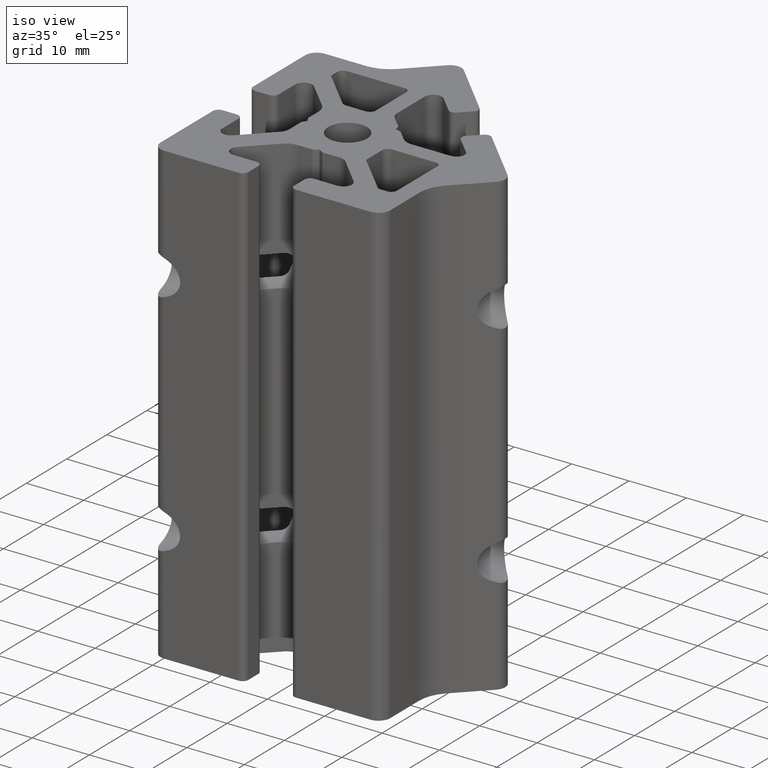
[diagram: clean part render]
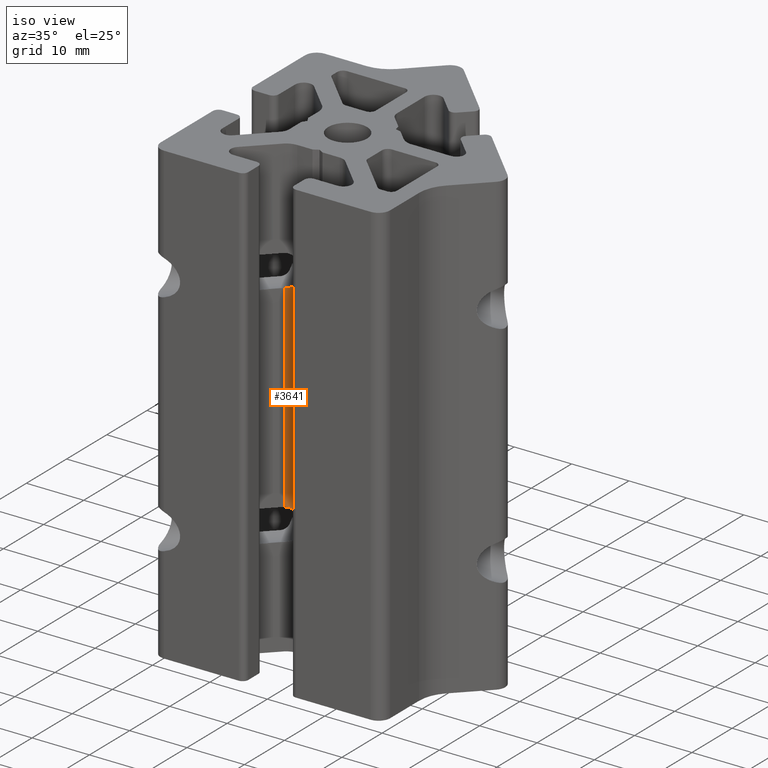
[diagram: same view with one face highlighted and labeled with its STEP entity id]
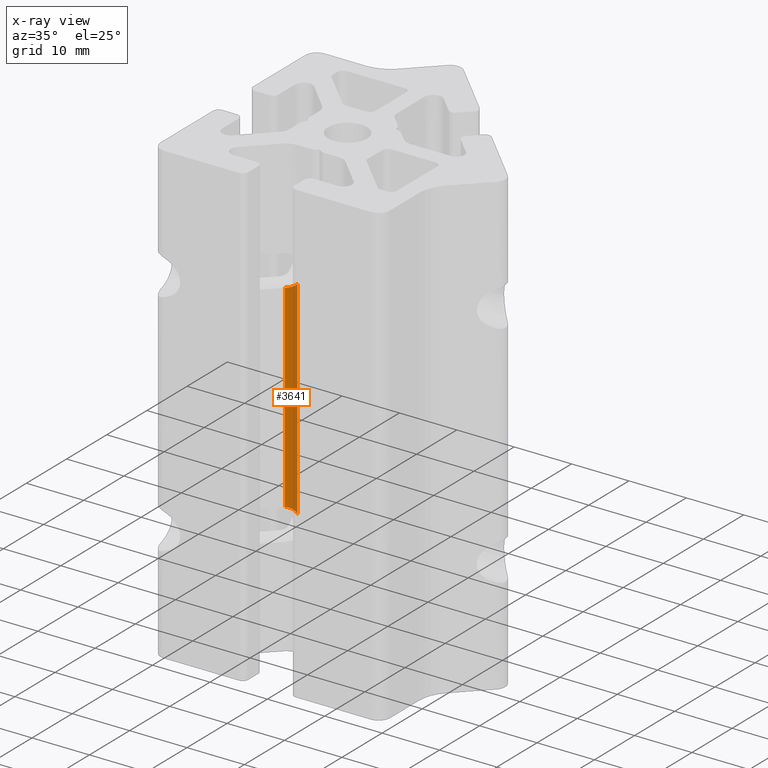
[diagram: x-ray of the same camera — body ghosted, the highlighted face saturated]
A machine part, iso view. The second image highlights one B-rep face of the part: STEP entity #3641.
The next image is the same camera in x-ray: the body ghosted, the highlighted face saturated — about 37% of this face is hidden behind the body in this view.
In plain terms, the highlighted cylindrical surface (edge-blend (fillet) strip) has radius 2.9284 mm, axis along (0, 0, -1).
Its self-contained STEP definition (entity closure, byte-faithful):
#3511=CARTESIAN_POINT('',(-5.257334492823247,-8.085783114958758,22.749415990107096));
#3512=VERTEX_POINT('',#3511);
#3519=CARTESIAN_POINT('',(-5.257334492823247,-8.085783114958758,57.250299231264805));
#3520=VERTEX_POINT('',#3519);
#3521=CARTESIAN_POINT('',(-5.257334492823247,-8.085783114958758,57.250299231264769));
#3522=DIRECTION('',(0.0,0.0,-1.0));
#3523=VECTOR('',#3522,34.500883241157638);
#3524=LINE('',#3521,#3523);
#3525=EDGE_CURVE('',#3520,#3512,#3524,.T.);
#3603=CARTESIAN_POINT('',(-3.500151814412675,-10.428407275395784,79.999715220555601));
#3604=DIRECTION('',(0.0,0.0,-1.0));
#3605=DIRECTION('',(-0.600046890361850,0.799964830081345,0.0));
#3606=AXIS2_PLACEMENT_3D('',#3603,#3604,#3605);
#3607=CYLINDRICAL_SURFACE('',#3606,2.928408940426380);
#3608=ORIENTED_EDGE('',*,*,#3525,.T.);
#3609=CARTESIAN_POINT('',(-3.500151814412675,-7.499998334969405,21.886856979532695));
#3610=VERTEX_POINT('',#3609);
#3611=CARTESIAN_POINT('',(-3.500151814412675,-7.499998334969405,21.886856979532652));
#3612=CARTESIAN_POINT('',(-3.611799862691441,-7.499998334969405,22.005186007849950));
#3613=CARTESIAN_POINT('',(-3.897640081839199,-7.514823193317625,22.254539934891596));
#3614=CARTESIAN_POINT('',(-4.395449667999401,-7.620433387307912,22.529594191349986));
#3615=CARTESIAN_POINT('',(-4.877192527758780,-7.828527037652748,22.685598723494131));
#3616=CARTESIAN_POINT('',(-5.151332268964325,-8.006271738450323,22.735790605817186));
#3617=CARTESIAN_POINT('',(-5.257334492823247,-8.085783114958758,22.749415990107053));
#3618=B_SPLINE_CURVE_WITH_KNOTS('',3,(#3611,#3612,#3613,#3614,#3615,#3616,#3617),.UNSPECIFIED.,.F.,.U.,(4,1,1,1,4),(0.0,0.488968791468270,1.130583750651671,1.717788193859628,2.117880081673690),.UNSPECIFIED.);
#3619=EDGE_CURVE('',#3610,#3512,#3618,.T.);
#3620=ORIENTED_EDGE('',*,*,#3619,.F.);
#3621=CARTESIAN_POINT('',(-3.500151814412675,-7.499998334969405,58.112858241839348));
#3622=VERTEX_POINT('',#3621);
#3623=CARTESIAN_POINT('',(-3.500151814412675,-7.499998334969405,58.112858241839326));
#3624=DIRECTION('',(0.0,0.0,-1.0));
#3625=VECTOR('',#3624,36.226001262306589);
#3626=LINE('',#3623,#3625);
#3627=EDGE_CURVE('',#3622,#3610,#3626,.T.);
#3628=ORIENTED_EDGE('',*,*,#3627,.F.);
#3629=CARTESIAN_POINT('',(-5.257334492823247,-8.085783114958758,57.250299231264847));
#3630=CARTESIAN_POINT('',(-5.151625859849901,-8.006491958504284,57.263886877774340));
#3631=CARTESIAN_POINT('',(-4.877847660606676,-7.828906770428603,57.313973541304037));
#3632=CARTESIAN_POINT('',(-4.396530902412906,-7.620779623662656,57.469668208699304));
#3633=CARTESIAN_POINT('',(-3.898319631759478,-7.514880772916513,57.744662766485263));
#3634=CARTESIAN_POINT('',(-3.612103970648604,-7.499998334969405,57.994206907851449));
#3635=CARTESIAN_POINT('',(-3.500151814412675,-7.499998334969405,58.112858241839362));
#3636=B_SPLINE_CURVE_WITH_KNOTS('',3,(#3629,#3630,#3631,#3632,#3633,#3634,#3635),.UNSPECIFIED.,.F.,.U.,(4,1,1,1,4),(0.0,0.398981144051929,0.986122016496259,1.627574272740602,2.117880005024756),.UNSPECIFIED.);
#3637=EDGE_CURVE('',#3520,#3622,#3636,.T.);
#3638=ORIENTED_EDGE('',*,*,#3637,.F.);
#3639=EDGE_LOOP('',(#3608,#3620,#3628,#3638));
#3640=FACE_OUTER_BOUND('',#3639,.T.);
#3641=ADVANCED_FACE('',(#3640),#3607,.F.);